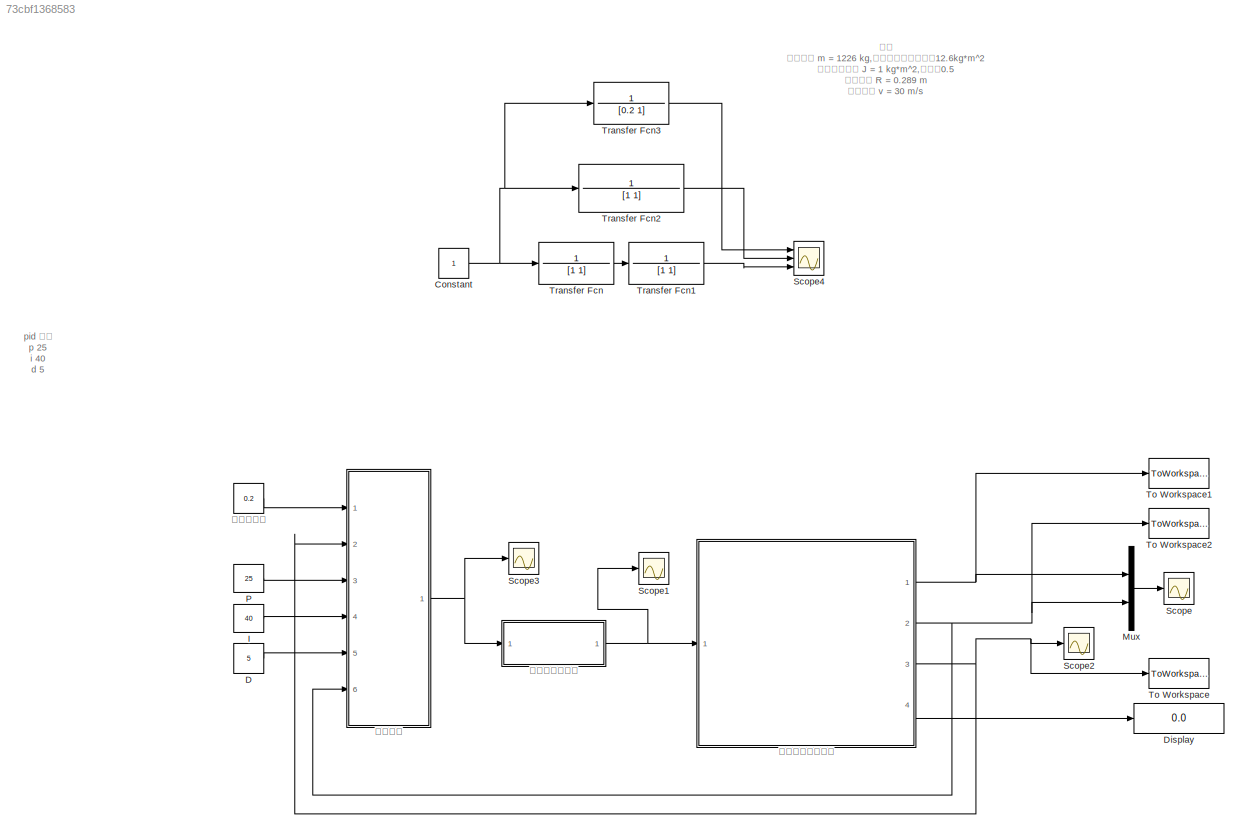
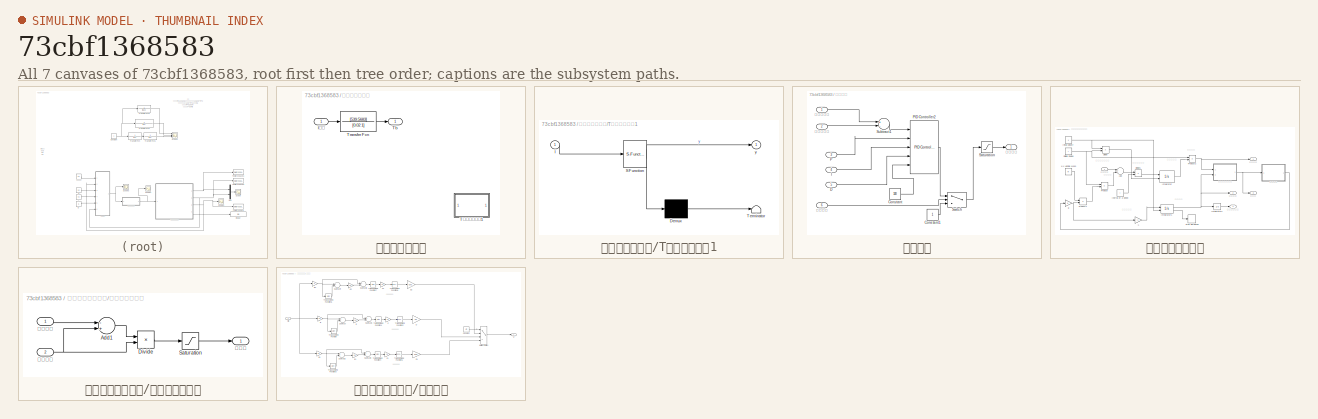
[diagram: thumbnail index - all 7 canvases of the model, root first then tree order]
MODEL slx_73cbf1368583
KIND model
CONFIG AbsTol = auto
CONFIG EnableMultiTasking = on
CONFIG FixedStep = 0.01
CONFIG MaxStep = 0.05
CONFIG MinStep = auto
CONFIG RelTol = 1e-3
CONFIG SampleTimeConstraint = Unconstrained
CONFIG Solver = VariableStepAuto
CONFIG SolverName = VariableStepAuto
CONFIG StartTime = 0.0
CONFIG StopTime = 30
BLOCK [Constant] Constant
BLOCK [Constant] D
  Value = 5
BLOCK [Display] Display
  Decimation = 1
  Ports = [1]
BLOCK [Constant] I
  Value = 40
BLOCK [Mux] Mux
  DisplayOption = bar
  Inputs = 2
  Ports = [2, 1]
BLOCK [Constant] P
  Value = 25
BLOCK [Scope] Scope
  Floating = off
  NumInputPorts = 1
  Ports = [1]
  ScopeSpecificationString = Simulink.scopes.TimeScopeBlockCfg('CurrentConfiguration', extmgr.ConfigurationSet(extmgr.Configuration('Core','General UI',true),extmgr.Configuration('Core','Source UI',true),extmgr.Configuration('Sources','WiredSimulink',true),extmgr.Configuration('Visuals','Time Domain',true,'SerializedDisplays',{struct('MinYLimReal','-3.75','MaxYLimReal','33.75','YLabelReal','','MinYLimMag','0.00000','MaxYLimMa...<+1399ch>
BLOCK [Scope] Scope1
  Floating = off
  NumInputPorts = 1
  Ports = [1]
  ScopeSpecificationString = Simulink.scopes.TimeScopeBlockCfg('CurrentConfiguration', extmgr.ConfigurationSet(extmgr.Configuration('Core','General UI',true),extmgr.Configuration('Core','Source UI',true),extmgr.Configuration('Sources','WiredSimulink',true,'DataLoggingVariableName','ScopeData1'),extmgr.Configuration('Visuals','Time Domain',true,'SerializedDisplays',{struct('MinYLimReal','-49.08616','MaxYLimReal','441.77545','Y...<+1488ch>
BLOCK [Scope] Scope2
  Floating = off
  NumInputPorts = 1
  Ports = [1]
  ScopeSpecificationString = Simulink.scopes.TimeScopeBlockCfg('CurrentConfiguration', extmgr.ConfigurationSet(extmgr.Configuration('Core','General UI',true),extmgr.Configuration('Core','Source UI',true),extmgr.Configuration('Sources','WiredSimulink',true,'DataLoggingVariableName','ScopeData2'),extmgr.Configuration('Visuals','Time Domain',true,'SerializedDisplays',{struct('MinYLimReal','-0.125','MaxYLimReal','1.125','YLabelRe...<+1450ch>
BLOCK [Scope] Scope3
  Floating = off
  NumInputPorts = 1
  Ports = [1]
  ScopeSpecificationString = Simulink.scopes.TimeScopeBlockCfg('CurrentConfiguration', extmgr.ConfigurationSet(extmgr.Configuration('Core','General UI',true),extmgr.Configuration('Core','Source UI',true),extmgr.Configuration('Sources','WiredSimulink',true,'DataLoggingVariableName','ScopeData1'),extmgr.Configuration('Visuals','Time Domain',true,'SerializedDisplays',{struct('MinYLimReal','-0.15','MaxYLimReal','1.35','YLabelReal...<+1415ch>
BLOCK [Scope] Scope4
  Floating = off
  NumInputPorts = 3
  Ports = [3]
  ScopeSpecificationString = Simulink.scopes.TimeScopeBlockCfg('CurrentConfiguration', extmgr.ConfigurationSet(extmgr.Configuration('Core','General UI',true),extmgr.Configuration('Core','Source UI',true),extmgr.Configuration('Sources','WiredSimulink',true,'DataLoggingVariableName','ScopeData1'),extmgr.Configuration('Visuals','Time Domain',true,'SerializedDisplays',{struct('MinYLimReal','-0.125','MaxYLimReal','1.125','YLabelRe...<+1504ch>
BLOCK [ToWorkspace] To Workspace
  FixptAsFi = on
  MaxDataPoints = inf
  Ports = [1]
  SampleTime = -1
  Save2DSignal = 3-D array (concatenate along third dimension)
  SaveFormat = Timeseries
  VariableName = slip
BLOCK [ToWorkspace] To Workspace1
  FixptAsFi = on
  MaxDataPoints = inf
  Ports = [1]
  SampleTime = -1
  Save2DSignal = 3-D array (concatenate along third dimension)
  SaveFormat = Timeseries
  VariableName = Wheel_speed
BLOCK [ToWorkspace] To Workspace2
  FixptAsFi = on
  MaxDataPoints = inf
  Ports = [1]
  SampleTime = -1
  Save2DSignal = 3-D array (concatenate along third dimension)
  SaveFormat = Timeseries
  VariableName = Vehicle_speed
BLOCK [TransferFcn] Transfer Fcn
  Denominator = [1 1]
  Numerator = 1
BLOCK [TransferFcn] Transfer Fcn1
  Denominator = [1 1]
  Numerator = 1
BLOCK [TransferFcn] Transfer Fcn2
  Numerator = 1
BLOCK [TransferFcn] Transfer Fcn3
  Denominator = [0.2 1]
  Numerator = 1
BLOCK [SubSystem] 制动器数学模型
  Ports = [1, 1]
  RequestExecContextInheritance = off
BLOCK [Inport] 制动器数学模型/I电流
  IconDisplay = Port number
BLOCK [Outport] 制动器数学模型/Tb
  IconDisplay = Port number
BLOCK [TransferFcn] 制动器数学模型/Transfer Fcn
  Denominator = [0.02 1]
  Numerator = [539.5683]
BLOCK [SubSystem] 制动器数学模型/T与电流有关的1
  ErrorFcn = Stateflow.Translate.translate
  PermitHierarchicalResolution = ExplicitOnly
  Ports = [1, 1]
  RequestExecContextInheritance = off
  SFBlockType = MATLAB Function
  TreatAsAtomicUnit = on
BLOCK [Demux] 制动器数学模型/T与电流有关的1/ Demux 
  Outputs = 1
  Ports = [1, 1]
BLOCK [S-Function] 制动器数学模型/T与电流有关的1/ SFunction 
  EnableBusSupport = on
  FunctionName = sf_sfun
  PortCounts = [1 2]
  Ports = [1, 2]
  SFcnIsStateOwnerBlock = off
  SFunctionDeploymentMode = off
  Tag = Stateflow S-Function controlSimulation 1
BLOCK [Terminator] 制动器数学模型/T与电流有关的1/ Terminator 
BLOCK [Inport] 制动器数学模型/T与电流有关的1/I
  IconDisplay = Port number
BLOCK [Outport] 制动器数学模型/T与电流有关的1/y
  IconDisplay = Port number
BLOCK [SubSystem] 控制模型
  Ports = [6, 1]
  RequestExecContextInheritance = off
BLOCK [Constant] 控制模型/Constant
  Value = 100
BLOCK [Constant] 控制模型/Constant1
BLOCK [Inport] 控制模型/D
  IconDisplay = Port number
  Port = 5
BLOCK [Inport] 控制模型/I
  IconDisplay = Port number
  Port = 4
BLOCK [Inport] 控制模型/P
  IconDisplay = Port number
  Port = 3
BLOCK [Reference] 控制模型/PID Controller2  REF=simulink/Continuous/PID Controller
  Ports = [5, 1]
  SourceBlock = simulink/Continuous/PID Controller
  SourceProductBaseCode = SL
  SourceProductName = Simulink
  SourceType = PID 1dof
BLOCK [Saturate] 控制模型/Saturation
  InputPortMap = u0
  LowerLimit = 0
  Ports = [1, 1]
  UpperLimit = 1.2
BLOCK [Sum] 控制模型/Subtract1
  InputSameDT = off
  Inputs = +-
  OutDataTypeStr = Inherit: Inherit via internal rule
  Ports = [2, 1]
  SaturateOnIntegerOverflow = off
BLOCK [Switch] 控制模型/Switch
  Criteria = u2 > Threshold
  InputSameDT = off
  SaturateOnIntegerOverflow = off
  Threshold = 1
BLOCK [Inport] 控制模型/实时滑移率
  IconDisplay = Port number
  Port = 2
BLOCK [Inport] 控制模型/理想滑移率
  IconDisplay = Port number
BLOCK [Outport] 控制模型/目标电流
  IconDisplay = Port number
BLOCK [Inport] 控制模型/车辆速度
  IconDisplay = Port number
  Port = 6
BLOCK [Constant] 期望滑移率
  Value = 0.2
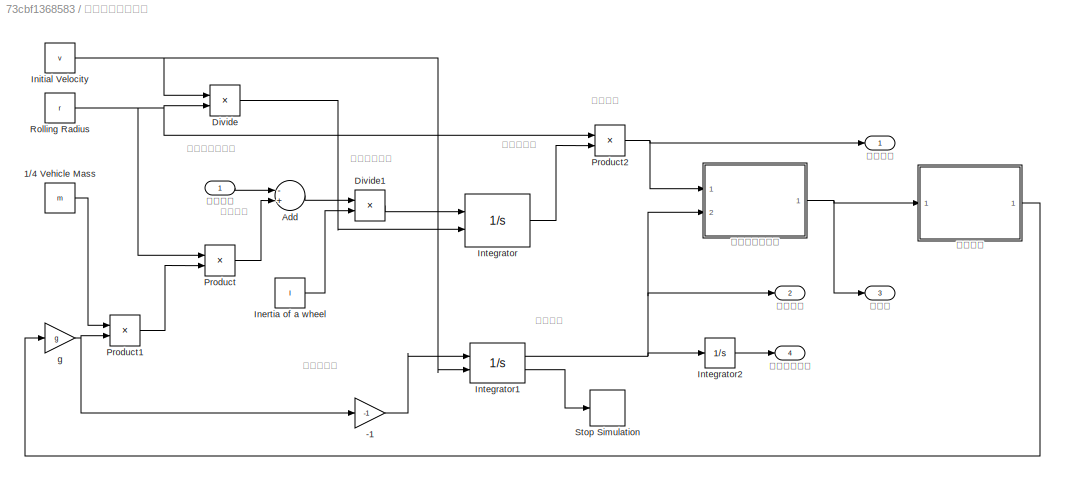
BLOCK [SubSystem] 车辆单轮制动模型
  Ports = [1, 4]
  RequestExecContextInheritance = off
BLOCK [Gain] 车辆单轮制动模型/-1
  Gain = -1
  OutDataTypeStr = Inherit: Inherit via internal rule
  ParamDataTypeStr = Inherit: Inherit via internal rule
  SaturateOnIntegerOverflow = off
BLOCK [Constant] 车辆单轮制动模型/1//4 Vehicle Mass
  Value = m
BLOCK [Sum] 车辆单轮制动模型/Add
  InputSameDT = off
  Inputs = -+
  OutDataTypeStr = Inherit: Inherit via internal rule
  Ports = [2, 1]
  SaturateOnIntegerOverflow = off
BLOCK [Product] 车辆单轮制动模型/Divide
  InputSameDT = off
  Inputs = */
  OutDataTypeStr = Inherit: Inherit via internal rule
  Ports = [2, 1]
  RndMeth = Floor
  SaturateOnIntegerOverflow = off
BLOCK [Product] 车辆单轮制动模型/Divide1
  InputSameDT = off
  Inputs = */
  OutDataTypeStr = Inherit: Inherit via internal rule
  Ports = [2, 1]
  RndMeth = Floor
  SaturateOnIntegerOverflow = off
BLOCK [Constant] 车辆单轮制动模型/Inertia of a wheel
  Value = I
BLOCK [Constant] 车辆单轮制动模型/Initial Velocity 
  Value = v
BLOCK [Integrator] 车辆单轮制动模型/Integrator
  InitialCondition = 30/0.23
  InitialConditionSource = external
  LimitOutput = on
  LowerSaturationLimit = 0
  Ports = [2, 1]
  ZeroCross = off
BLOCK [Integrator] 车辆单轮制动模型/Integrator1
  InitialCondition = 30
  InitialConditionSource = external
  LimitOutput = on
  LowerSaturationLimit = 0
  Ports = [2, 2]
  ShowSaturationPort = on
  ZeroCross = off
BLOCK [Integrator] 车辆单轮制动模型/Integrator2
  Ports = [1, 1]
BLOCK [Product] 车辆单轮制动模型/Product
  InputSameDT = off
  OutDataTypeStr = Inherit: Inherit via internal rule
  Ports = [2, 1]
  RndMeth = Floor
  SaturateOnIntegerOverflow = off
BLOCK [Product] 车辆单轮制动模型/Product1
  InputSameDT = off
  OutDataTypeStr = Inherit: Inherit via internal rule
  Ports = [2, 1]
  RndMeth = Floor
  SaturateOnIntegerOverflow = off
BLOCK [Product] 车辆单轮制动模型/Product2
  InputSameDT = off
  OutDataTypeStr = Inherit: Inherit via internal rule
  Ports = [2, 1]
  RndMeth = Floor
  SaturateOnIntegerOverflow = off
BLOCK [Constant] 车辆单轮制动模型/Rolling Radius 
  Value = r
BLOCK [Stop] 车辆单轮制动模型/Stop Simulation
BLOCK [Gain] 车辆单轮制动模型/g
  Gain = g
  OutDataTypeStr = Inherit: Inherit via internal rule
  ParamDataTypeStr = Inherit: Inherit via internal rule
  SaturateOnIntegerOverflow = off
BLOCK [Inport] 车辆单轮制动模型/制动力矩
  IconDisplay = Port number
BLOCK [Outport] 车辆单轮制动模型/滑移率
  IconDisplay = Port number
  Port = 3
BLOCK [SubSystem] 车辆单轮制动模型/滑移率计算模型
  Ports = [2, 1]
  RequestExecContextInheritance = off
BLOCK [Sum] 车辆单轮制动模型/滑移率计算模型/Add1
  InputSameDT = off
  Inputs = -+
  OutDataTypeStr = Inherit: Inherit via internal rule
  Ports = [2, 1]
  SaturateOnIntegerOverflow = off
BLOCK [Product] 车辆单轮制动模型/滑移率计算模型/Divide
  InputSameDT = off
  Inputs = */
  OutDataTypeStr = Inherit: Inherit via internal rule
  Ports = [2, 1]
  RndMeth = Floor
  SaturateOnIntegerOverflow = off
BLOCK [Saturate] 车辆单轮制动模型/滑移率计算模型/Saturation
  InputPortMap = u0
  LowerLimit = 0
  Ports = [1, 1]
  UpperLimit = 1
BLOCK [Outport] 车辆单轮制动模型/滑移率计算模型/滑移率
  IconDisplay = Port number
BLOCK [Inport] 车辆单轮制动模型/滑移率计算模型/车轮速度
  IconDisplay = Port number
BLOCK [Inport] 车辆单轮制动模型/滑移率计算模型/车辆速度
  IconDisplay = Port number
  Port = 2
BLOCK [Outport] 车辆单轮制动模型/车轮速度
  IconDisplay = Port number
BLOCK [Outport] 车辆单轮制动模型/车辆制动距离
  IconDisplay = Port number
  Port = 4
BLOCK [Outport] 车辆单轮制动模型/车辆速度
  IconDisplay = Port number
  Port = 2
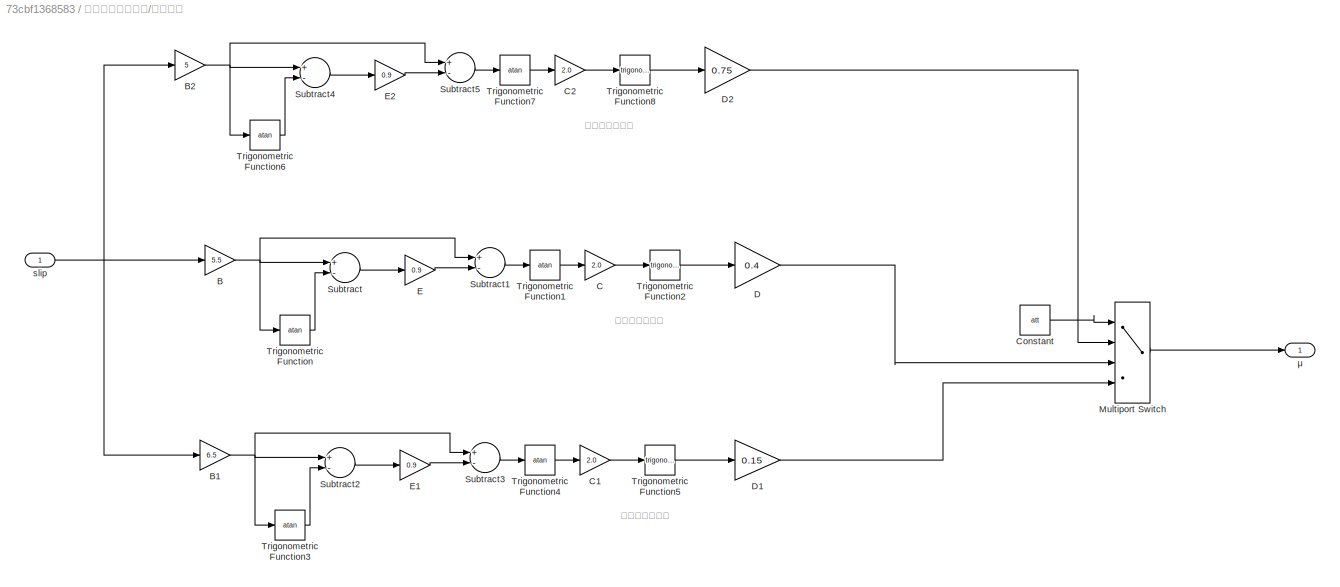
BLOCK [SubSystem] 车辆单轮制动模型/魔术公式
  Ports = [1, 1]
  RequestExecContextInheritance = off
BLOCK [Gain] 车辆单轮制动模型/魔术公式/B
  Gain = 5.5
  OutDataTypeStr = Inherit: Inherit via internal rule
  ParamDataTypeStr = Inherit: Inherit via internal rule
  SaturateOnIntegerOverflow = off
BLOCK [Gain] 车辆单轮制动模型/魔术公式/B1
  Gain = 6.5
  OutDataTypeStr = Inherit: Inherit via internal rule
  ParamDataTypeStr = Inherit: Inherit via internal rule
  SaturateOnIntegerOverflow = off
BLOCK [Gain] 车辆单轮制动模型/魔术公式/B2
  Gain = 5
  OutDataTypeStr = Inherit: Inherit via internal rule
  ParamDataTypeStr = Inherit: Inherit via internal rule
  SaturateOnIntegerOverflow = off
BLOCK [Gain] 车辆单轮制动模型/魔术公式/C
  Gain = 2.0
  OutDataTypeStr = Inherit: Inherit via internal rule
  ParamDataTypeStr = Inherit: Inherit via internal rule
  SaturateOnIntegerOverflow = off
BLOCK [Gain] 车辆单轮制动模型/魔术公式/C1
  Gain = 2.0
  OutDataTypeStr = Inherit: Inherit via internal rule
  ParamDataTypeStr = Inherit: Inherit via internal rule
  SaturateOnIntegerOverflow = off
BLOCK [Gain] 车辆单轮制动模型/魔术公式/C2
  Gain = 2.0
  OutDataTypeStr = Inherit: Inherit via internal rule
  ParamDataTypeStr = Inherit: Inherit via internal rule
  SaturateOnIntegerOverflow = off
BLOCK [Constant] 车辆单轮制动模型/魔术公式/Constant
  Value = att
BLOCK [Gain] 车辆单轮制动模型/魔术公式/D
  Gain = 0.4
  OutDataTypeStr = Inherit: Inherit via internal rule
  ParamDataTypeStr = Inherit: Inherit via internal rule
  SaturateOnIntegerOverflow = off
BLOCK [Gain] 车辆单轮制动模型/魔术公式/D1
  Gain = 0.15
  OutDataTypeStr = Inherit: Inherit via internal rule
  ParamDataTypeStr = Inherit: Inherit via internal rule
  SaturateOnIntegerOverflow = off
BLOCK [Gain] 车辆单轮制动模型/魔术公式/D2
  Gain = 0.75
  OutDataTypeStr = Inherit: Inherit via internal rule
  ParamDataTypeStr = Inherit: Inherit via internal rule
  SaturateOnIntegerOverflow = off
BLOCK [Gain] 车辆单轮制动模型/魔术公式/E
  Gain = 0.9
  OutDataTypeStr = Inherit: Inherit via internal rule
  ParamDataTypeStr = Inherit: Inherit via internal rule
  SaturateOnIntegerOverflow = off
BLOCK [Gain] 车辆单轮制动模型/魔术公式/E1
  Gain = 0.9
  OutDataTypeStr = Inherit: Inherit via internal rule
  ParamDataTypeStr = Inherit: Inherit via internal rule
  SaturateOnIntegerOverflow = off
BLOCK [Gain] 车辆单轮制动模型/魔术公式/E2
  Gain = 0.9
  OutDataTypeStr = Inherit: Inherit via internal rule
  ParamDataTypeStr = Inherit: Inherit via internal rule
  SaturateOnIntegerOverflow = off
BLOCK [MultiPortSwitch] 车辆单轮制动模型/魔术公式/Multiport Switch
  InputSameDT = off
  Ports = [4, 1]
  SaturateOnIntegerOverflow = off
BLOCK [Sum] 车辆单轮制动模型/魔术公式/Subtract
  InputSameDT = off
  Inputs = +-
  OutDataTypeStr = Inherit: Inherit via internal rule
  Ports = [2, 1]
  SaturateOnIntegerOverflow = off
BLOCK [Sum] 车辆单轮制动模型/魔术公式/Subtract1
  InputSameDT = off
  Inputs = +-
  OutDataTypeStr = Inherit: Inherit via internal rule
  Ports = [2, 1]
  SaturateOnIntegerOverflow = off
BLOCK [Sum] 车辆单轮制动模型/魔术公式/Subtract2
  InputSameDT = off
  Inputs = +-
  OutDataTypeStr = Inherit: Inherit via internal rule
  Ports = [2, 1]
  SaturateOnIntegerOverflow = off
BLOCK [Sum] 车辆单轮制动模型/魔术公式/Subtract3
  InputSameDT = off
  Inputs = +-
  OutDataTypeStr = Inherit: Inherit via internal rule
  Ports = [2, 1]
  SaturateOnIntegerOverflow = off
BLOCK [Sum] 车辆单轮制动模型/魔术公式/Subtract4
  InputSameDT = off
  Inputs = +-
  OutDataTypeStr = Inherit: Inherit via internal rule
  Ports = [2, 1]
  SaturateOnIntegerOverflow = off
BLOCK [Sum] 车辆单轮制动模型/魔术公式/Subtract5
  InputSameDT = off
  Inputs = +-
  OutDataTypeStr = Inherit: Inherit via internal rule
  Ports = [2, 1]
  SaturateOnIntegerOverflow = off
BLOCK [Trigonometry] 车辆单轮制动模型/魔术公式/Trigonometric Function
  Operator = atan
  Ports = [1, 1]
BLOCK [Trigonometry] 车辆单轮制动模型/魔术公式/Trigonometric Function1
  Operator = atan
  Ports = [1, 1]
BLOCK [Trigonometry] 车辆单轮制动模型/魔术公式/Trigonometric Function2
  Ports = [1, 1]
BLOCK [Trigonometry] 车辆单轮制动模型/魔术公式/Trigonometric Function3
  Operator = atan
  Ports = [1, 1]
BLOCK [Trigonometry] 车辆单轮制动模型/魔术公式/Trigonometric Function4
  Operator = atan
  Ports = [1, 1]
BLOCK [Trigonometry] 车辆单轮制动模型/魔术公式/Trigonometric Function5
  Ports = [1, 1]
BLOCK [Trigonometry] 车辆单轮制动模型/魔术公式/Trigonometric Function6
  Operator = atan
  Ports = [1, 1]
BLOCK [Trigonometry] 车辆单轮制动模型/魔术公式/Trigonometric Function7
  Operator = atan
  Ports = [1, 1]
BLOCK [Trigonometry] 车辆单轮制动模型/魔术公式/Trigonometric Function8
  Ports = [1, 1]
BLOCK [Inport] 车辆单轮制动模型/魔术公式/slip
  IconDisplay = Port number
BLOCK [Outport] 车辆单轮制动模型/魔术公式/μ
  IconDisplay = Port number
ANNOTATION (root): pid 参数 p 25 i 40 d 5
ANNOTATION (root): 参数 车辆质量 m = 1226 kg,缩比单轮转动惯量为12.6kg*m^2 车轮转动惯量 J = 1 kg*m^2,缩比为0.5 车轮半径 R = 0.289 m 初始车速 v = 30 m/s
ANNOTATION 车辆单轮制动模型: 制动器制动力矩
ANNOTATION 车辆单轮制动模型: 地面阻力
ANNOTATION 车辆单轮制动模型: 车轮角加速度
ANNOTATION 车辆单轮制动模型: 车轮角速度
ANNOTATION 车辆单轮制动模型: 车轮速度
ANNOTATION 车辆单轮制动模型: 车辆减速度
ANNOTATION 车辆单轮制动模型: 车辆速度
ANNOTATION 车辆单轮制动模型/魔术公式: 中附着系数路面
ANNOTATION 车辆单轮制动模型/魔术公式: 低附着系数路面
ANNOTATION 车辆单轮制动模型/魔术公式: 高附着系数路面
NET Constant:1 -> Transfer Fcn2:1, Transfer Fcn3:1, Transfer Fcn:1
LINE D:1 -> 控制模型:5
LINE I:1 -> 控制模型:4
LINE Mux:1 -> Scope:1
LINE P:1 -> 控制模型:3
LINE Transfer Fcn1:1 -> Scope4:3
LINE Transfer Fcn2:1 -> Scope4:2
LINE Transfer Fcn3:1 -> Scope4:1
LINE Transfer Fcn:1 -> Transfer Fcn1:1
LINE 制动器数学模型/I电流:1 -> 制动器数学模型/Transfer Fcn:1
LINE 制动器数学模型/Transfer Fcn:1 -> 制动器数学模型/Tb:1
NET 制动器数学模型:1 -> Scope1:1, 车辆单轮制动模型:1
LINE 控制模型/Constant1:1 -> 控制模型/Switch:3
LINE 控制模型/Constant:1 -> 控制模型/PID Controller2:5
LINE 控制模型/D:1 -> 控制模型/PID Controller2:4
LINE 控制模型/I:1 -> 控制模型/PID Controller2:3
LINE 控制模型/P:1 -> 控制模型/PID Controller2:2
LINE 控制模型/PID Controller2:1 -> 控制模型/Switch:1
LINE 控制模型/Saturation:1 -> 控制模型/目标电流:1
LINE 控制模型/Subtract1:1 -> 控制模型/PID Controller2:1
LINE 控制模型/Switch:1 -> 控制模型/Saturation:1
LINE 控制模型/实时滑移率:1 -> 控制模型/Subtract1:2
LINE 控制模型/理想滑移率:1 -> 控制模型/Subtract1:1
LINE 控制模型/车辆速度:1 -> 控制模型/Switch:2
NET 控制模型:1 -> Scope3:1, 制动器数学模型:1
LINE 期望滑移率:1 -> 控制模型:1
LINE 车辆单轮制动模型/-1:1 -> 车辆单轮制动模型/Integrator1:1
LINE 车辆单轮制动模型/1//4 Vehicle Mass:1 -> 车辆单轮制动模型/Product1:1
LINE 车辆单轮制动模型/Add:1 -> 车辆单轮制动模型/Divide1:1
LINE 车辆单轮制动模型/Divide1:1 -> 车辆单轮制动模型/Integrator:1
LINE 车辆单轮制动模型/Divide:1 -> 车辆单轮制动模型/Integrator:2
LINE 车辆单轮制动模型/Inertia of a wheel:1 -> 车辆单轮制动模型/Divide1:2
NET 车辆单轮制动模型/Initial Velocity :1 -> 车辆单轮制动模型/Divide:1, 车辆单轮制动模型/Integrator1:2
NET 车辆单轮制动模型/Integrator1:1 -> 车辆单轮制动模型/Integrator2:1, 车辆单轮制动模型/滑移率计算模型:2, 车辆单轮制动模型/车辆速度:1
LINE 车辆单轮制动模型/Integrator1:2 -> 车辆单轮制动模型/Stop Simulation:1
LINE 车辆单轮制动模型/Integrator2:1 -> 车辆单轮制动模型/车辆制动距离:1
LINE 车辆单轮制动模型/Integrator:1 -> 车辆单轮制动模型/Product2:2
LINE 车辆单轮制动模型/Product1:1 -> 车辆单轮制动模型/Product:2
NET 车辆单轮制动模型/Product2:1 -> 车辆单轮制动模型/滑移率计算模型:1, 车辆单轮制动模型/车轮速度:1
LINE 车辆单轮制动模型/Product:1 -> 车辆单轮制动模型/Add:2
NET 车辆单轮制动模型/Rolling Radius :1 -> 车辆单轮制动模型/Divide:2, 车辆单轮制动模型/Product2:1, 车辆单轮制动模型/Product:1
NET 车辆单轮制动模型/g:1 -> 车辆单轮制动模型/-1:1, 车辆单轮制动模型/Product1:2
LINE 车辆单轮制动模型/制动力矩:1 -> 车辆单轮制动模型/Add:1
LINE 车辆单轮制动模型/滑移率计算模型/Add1:1 -> 车辆单轮制动模型/滑移率计算模型/Divide:1
LINE 车辆单轮制动模型/滑移率计算模型/Divide:1 -> 车辆单轮制动模型/滑移率计算模型/Saturation:1
LINE 车辆单轮制动模型/滑移率计算模型/Saturation:1 -> 车辆单轮制动模型/滑移率计算模型/滑移率:1
LINE 车辆单轮制动模型/滑移率计算模型/车轮速度:1 -> 车辆单轮制动模型/滑移率计算模型/Add1:1
NET 车辆单轮制动模型/滑移率计算模型/车辆速度:1 -> 车辆单轮制动模型/滑移率计算模型/Add1:2, 车辆单轮制动模型/滑移率计算模型/Divide:2
NET 车辆单轮制动模型/滑移率计算模型:1 -> 车辆单轮制动模型/滑移率:1, 车辆单轮制动模型/魔术公式:1
NET 车辆单轮制动模型/魔术公式/B1:1 -> 车辆单轮制动模型/魔术公式/Subtract2:1, 车辆单轮制动模型/魔术公式/Subtract3:1, 车辆单轮制动模型/魔术公式/Trigonometric Function3:1
NET 车辆单轮制动模型/魔术公式/B2:1 -> 车辆单轮制动模型/魔术公式/Subtract4:1, 车辆单轮制动模型/魔术公式/Subtract5:1, 车辆单轮制动模型/魔术公式/Trigonometric Function6:1
NET 车辆单轮制动模型/魔术公式/B:1 -> 车辆单轮制动模型/魔术公式/Subtract1:1, 车辆单轮制动模型/魔术公式/Subtract:1, 车辆单轮制动模型/魔术公式/Trigonometric Function:1
LINE 车辆单轮制动模型/魔术公式/C1:1 -> 车辆单轮制动模型/魔术公式/Trigonometric Function5:1
LINE 车辆单轮制动模型/魔术公式/C2:1 -> 车辆单轮制动模型/魔术公式/Trigonometric Function8:1
LINE 车辆单轮制动模型/魔术公式/C:1 -> 车辆单轮制动模型/魔术公式/Trigonometric Function2:1
LINE 车辆单轮制动模型/魔术公式/Constant:1 -> 车辆单轮制动模型/魔术公式/Multiport Switch:1
LINE 车辆单轮制动模型/魔术公式/D1:1 -> 车辆单轮制动模型/魔术公式/Multiport Switch:4
LINE 车辆单轮制动模型/魔术公式/D2:1 -> 车辆单轮制动模型/魔术公式/Multiport Switch:2
LINE 车辆单轮制动模型/魔术公式/D:1 -> 车辆单轮制动模型/魔术公式/Multiport Switch:3
LINE 车辆单轮制动模型/魔术公式/E1:1 -> 车辆单轮制动模型/魔术公式/Subtract3:2
LINE 车辆单轮制动模型/魔术公式/E2:1 -> 车辆单轮制动模型/魔术公式/Subtract5:2
LINE 车辆单轮制动模型/魔术公式/E:1 -> 车辆单轮制动模型/魔术公式/Subtract1:2
LINE 车辆单轮制动模型/魔术公式/Multiport Switch:1 -> 车辆单轮制动模型/魔术公式/μ:1
LINE 车辆单轮制动模型/魔术公式/Subtract1:1 -> 车辆单轮制动模型/魔术公式/Trigonometric Function1:1
LINE 车辆单轮制动模型/魔术公式/Subtract2:1 -> 车辆单轮制动模型/魔术公式/E1:1
LINE 车辆单轮制动模型/魔术公式/Subtract3:1 -> 车辆单轮制动模型/魔术公式/Trigonometric Function4:1
LINE 车辆单轮制动模型/魔术公式/Subtract4:1 -> 车辆单轮制动模型/魔术公式/E2:1
LINE 车辆单轮制动模型/魔术公式/Subtract5:1 -> 车辆单轮制动模型/魔术公式/Trigonometric Function7:1
LINE 车辆单轮制动模型/魔术公式/Subtract:1 -> 车辆单轮制动模型/魔术公式/E:1
LINE 车辆单轮制动模型/魔术公式/Trigonometric Function1:1 -> 车辆单轮制动模型/魔术公式/C:1
LINE 车辆单轮制动模型/魔术公式/Trigonometric Function2:1 -> 车辆单轮制动模型/魔术公式/D:1
LINE 车辆单轮制动模型/魔术公式/Trigonometric Function3:1 -> 车辆单轮制动模型/魔术公式/Subtract2:2
LINE 车辆单轮制动模型/魔术公式/Trigonometric Function4:1 -> 车辆单轮制动模型/魔术公式/C1:1
LINE 车辆单轮制动模型/魔术公式/Trigonometric Function5:1 -> 车辆单轮制动模型/魔术公式/D1:1
LINE 车辆单轮制动模型/魔术公式/Trigonometric Function6:1 -> 车辆单轮制动模型/魔术公式/Subtract4:2
LINE 车辆单轮制动模型/魔术公式/Trigonometric Function7:1 -> 车辆单轮制动模型/魔术公式/C2:1
LINE 车辆单轮制动模型/魔术公式/Trigonometric Function8:1 -> 车辆单轮制动模型/魔术公式/D2:1
LINE 车辆单轮制动模型/魔术公式/Trigonometric Function:1 -> 车辆单轮制动模型/魔术公式/Subtract:2
NET 车辆单轮制动模型/魔术公式/slip:1 -> 车辆单轮制动模型/魔术公式/B1:1, 车辆单轮制动模型/魔术公式/B2:1, 车辆单轮制动模型/魔术公式/B:1
LINE 车辆单轮制动模型/魔术公式:1 -> 车辆单轮制动模型/g:1
NET 车辆单轮制动模型:1 -> Mux:1, To Workspace1:1
NET 车辆单轮制动模型:2 -> Mux:2, To Workspace2:1, 控制模型:6
NET 车辆单轮制动模型:3 -> Scope2:1, To Workspace:1, 控制模型:2
LINE 车辆单轮制动模型:4 -> Display:1
note: NET lines group one-source signal fan-out (src -> all destinations, sorted); 1:1 wires keep LINE
CHART 制动器数学模型/T与电流有关的1 states=1 transitions=1
  STATE_LABEL 'eML_blk_kernel()'
  STATE_LABEL 'SCRIPT:\nfunction y = fcn(I)\n% 参数设置\nr1=0.037;r2=0.105;r3=0.139;r4=0.153;\ndel=0.001;\nl1=0.044;l2=0.015;l3=0.008;l4=0.007;\nN=1790;%匝数\nu1=4*10^-4;%20钢\n%u2=4*3.14*10^-7;%不锈钢\nu3=3.2*10^-6;%磁流变液\nn=3;xiaolv= 1;\n\n% 计算B_I关系\nRm1=(l1+l2)/(pi*u1*(r4^2-r3^2));\nRm2=log((r4+r3)/(r1+r2))/(2*pi*u1*l2);\nRm3=del/(pi*u3*(r2^2-r1^2));\n\nRm4=l3/(pi*u1*(r2^2-r1^2));\nRm5=l4/(pi*u1*(r2^2-r1^2));\n\nRm=Rm1+2*Rm2+6*Rm3+3*Rm4+2*...<+173ch>'
